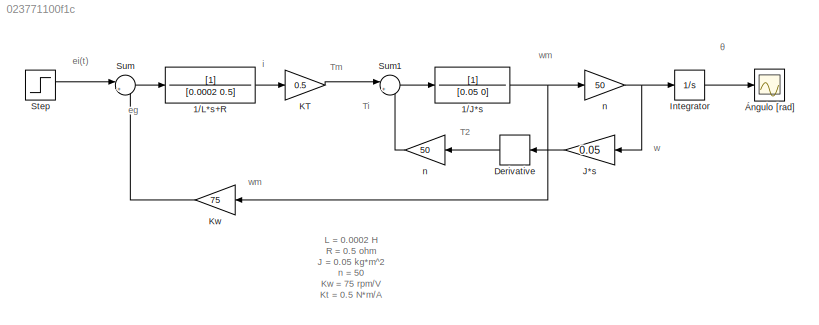
MODEL slx_023771100f1c
KIND model
CONFIG AbsTol = auto
CONFIG EnableMultiTasking = off
CONFIG FixedStep = auto
CONFIG MaxStep = auto
CONFIG MinStep = auto
CONFIG RelTol = 1e-3
CONFIG SampleTimeConstraint = Unconstrained
CONFIG SolverName = ode15s
CONFIG StartTime = 0.0
CONFIG StopTime = 10.0
BLOCK [TransferFcn] 1//J*s
  Denominator = [0.05 0]
BLOCK [TransferFcn] 1//L*s+R
  Denominator = [0.0002 0.5]
BLOCK [Derivative] Derivative
  NameLocation = top
BLOCK [Integrator] Integrator
  Ports = [1, 1]
BLOCK [Gain] J*s
  Gain = 0.05
BLOCK [Gain] KT
  Gain = 0.5
BLOCK [Gain] Kw
  Gain = 75
BLOCK [Step] Step
  SampleTime = 0
BLOCK [Sum] Sum
  Inputs = |+-
  Ports = [2, 1]
BLOCK [Sum] Sum1
  Inputs = |+-
  Ports = [2, 1]
BLOCK [Gain] n
  Gain = 50
BLOCK [Gain] n 
  Gain = 50
BLOCK [Scope] Ángulo [rad]
  Floating = off
  NumInputPorts = 1
  Ports = [1]
  ScopeSpecificationString = Simulink.scopes.TimeScopeBlockCfg('CurrentConfiguration', extmgr.ConfigurationSet(extmgr.Configuration('Core','General UI',true),extmgr.Configuration('Core','Source UI',true),extmgr.Configuration('Sources','WiredSimulink',true),extmgr.Configuration('Visuals','Time Domain',true,'SerializedDisplays',{struct('MinYLimReal','-0.00005','MaxYLimReal','0.00043','YLabelReal','','MinYLimMag','0.00000','MaxY...<+1363ch>
ANNOTATION (root): θ
ANNOTATION (root): L = 0.0002 H R = 0.5 ohm J = 0.05 kg*m^2 n = 50 Kw = 75 rpm/V Kt = 0.5 N*m/A
ANNOTATION (root): T2
ANNOTATION (root): Ti
ANNOTATION (root): Tm
ANNOTATION (root): eg
ANNOTATION (root): ei(t)
ANNOTATION (root): i
ANNOTATION (root): w
ANNOTATION (root): wm
NET 1//J*s:1 -> Kw:1, n :1
LINE 1//L*s+R:1 -> KT:1
LINE Derivative:1 -> n:1
LINE Integrator:1 -> Ángulo [rad]:1
LINE J*s:1 -> Derivative:1
LINE KT:1 -> Sum1:1
LINE Kw:1 -> Sum:2
LINE Step:1 -> Sum:1
LINE Sum1:1 -> 1//J*s:1
LINE Sum:1 -> 1//L*s+R:1
NET n :1 -> Integrator:1, J*s:1
LINE n:1 -> Sum1:2
note: NET lines group one-source signal fan-out (src -> all destinations, sorted); 1:1 wires keep LINE
